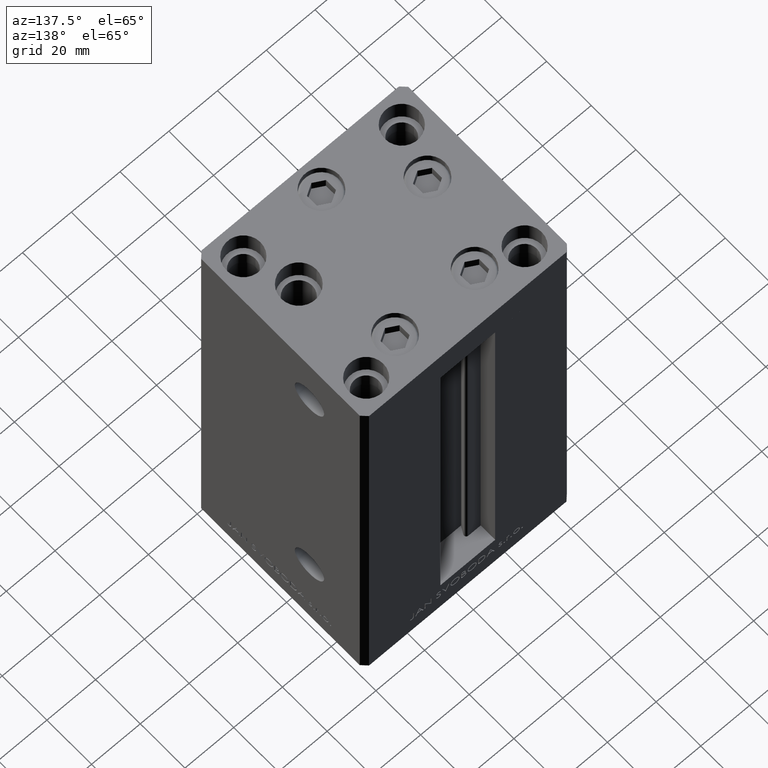
[diagram: clean part render]
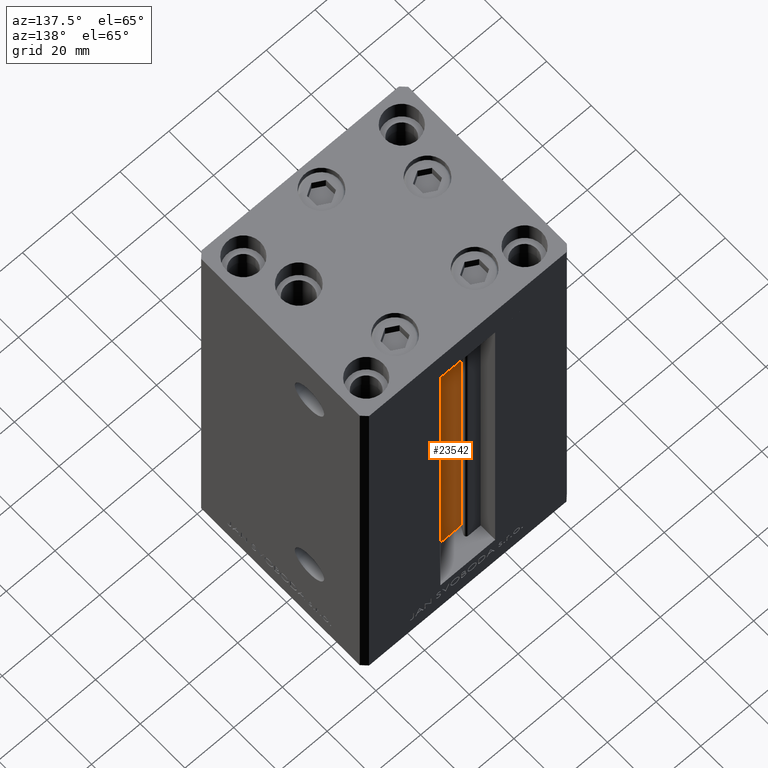
[diagram: same view with one face highlighted and labeled with its STEP entity id]
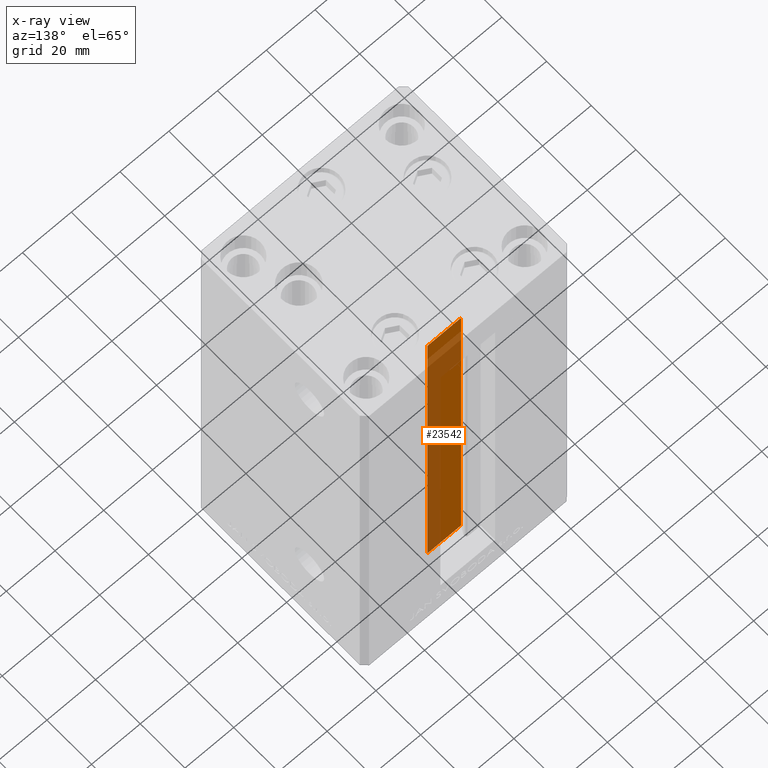
[diagram: x-ray of the same camera — body ghosted, the highlighted face saturated]
A machine part, auxiliary view. The second image highlights one B-rep face of the part: STEP entity #23542.
The next image is the same camera in x-ray: the body ghosted, the highlighted face saturated — about 45% of this face is hidden behind the body in this view.
In plain terms, the highlighted planar face has unit normal (0, -1, 0).
Its self-contained STEP definition (entity closure, byte-faithful):
#1170 = VERTEX_POINT ( 'NONE', #11603 ) ;
#2106 = VERTEX_POINT ( 'NONE', #38323 ) ;
#2194 = CARTESIAN_POINT ( 'NONE',  ( -6.876153656360465938, 26.99999999999986855, 148.5000000000000000 ) ) ;
#3292 = VERTEX_POINT ( 'NONE', #2194 ) ;
#4184 = VECTOR ( 'NONE', #23175, 1000.000000000000000 ) ;
#5510 = EDGE_CURVE ( 'NONE', #1170, #40944, #18996, .T. ) ;
#7609 = ORIENTED_EDGE ( 'NONE', *, *, #16203, .F. ) ;
#8912 = ORIENTED_EDGE ( 'NONE', *, *, #12816, .T. ) ;
#11603 = CARTESIAN_POINT ( 'NONE',  ( 6.876153656360465938, 26.99999999999986855, 0.000000000000000000 ) ) ;
#12816 = EDGE_CURVE ( 'NONE', #2106, #3292, #26680, .T. ) ;
#14702 = EDGE_CURVE ( 'NONE', #40944, #3292, #19872, .T. ) ;
#15450 = VECTOR ( 'NONE', #29778, 1000.000000000000000 ) ;
#16203 = EDGE_CURVE ( 'NONE', #2106, #1170, #37234, .T. ) ;
#17208 = CARTESIAN_POINT ( 'NONE',  ( 6.876153656360465938, 26.99999999999986855, 148.5000000000000000 ) ) ;
#18996 = LINE ( 'NONE', #22489, #24637 ) ;
#19872 = LINE ( 'NONE', #30616, #32904 ) ;
#20590 = AXIS2_PLACEMENT_3D ( 'NONE', #40422, #32959, #32705 ) ;
#22489 = CARTESIAN_POINT ( 'NONE',  ( 6.876153656360465938, 26.99999999999986855, 0.000000000000000000 ) ) ;
#23175 = DIRECTION ( 'NONE',  ( -0.000000000000000000, -0.000000000000000000, 1.000000000000000000 ) ) ;
#23542 = ADVANCED_FACE ( 'NONE', ( #48387 ), #44899, .F. ) ;
#24637 = VECTOR ( 'NONE', #45388, 1000.000000000000000 ) ;
#25564 = ORIENTED_EDGE ( 'NONE', *, *, #14702, .F. ) ;
#26680 = LINE ( 'NONE', #45105, #4184 ) ;
#27367 = DIRECTION ( 'NONE',  ( -1.000000000000000000, 0.000000000000000000, 0.000000000000000000 ) ) ;
#29778 = DIRECTION ( 'NONE',  ( 1.000000000000000000, -0.000000000000000000, -0.000000000000000000 ) ) ;
#30616 = CARTESIAN_POINT ( 'NONE',  ( 0.000000000000000000, 26.99999999999986855, 148.5000000000000000 ) ) ;
#32705 = DIRECTION ( 'NONE',  ( 0.000000000000000000, 0.000000000000000000, -1.000000000000000000 ) ) ;
#32904 = VECTOR ( 'NONE', #27367, 1000.000000000000000 ) ;
#32959 = DIRECTION ( 'NONE',  ( 0.000000000000000000, -1.000000000000000000, -0.000000000000000000 ) ) ;
#33759 = CARTESIAN_POINT ( 'NONE',  ( 6.876153656360465938, 26.99999999999986855, 0.000000000000000000 ) ) ;
#37234 = LINE ( 'NONE', #33759, #15450 ) ;
#37767 = ORIENTED_EDGE ( 'NONE', *, *, #5510, .F. ) ;
#38323 = CARTESIAN_POINT ( 'NONE',  ( -6.876153656360465938, 26.99999999999986855, 0.000000000000000000 ) ) ;
#40422 = CARTESIAN_POINT ( 'NONE',  ( 6.876153656360465938, 26.99999999999986855, 0.000000000000000000 ) ) ;
#40944 = VERTEX_POINT ( 'NONE', #17208 ) ;
#44899 = PLANE ( 'NONE',  #20590 ) ;
#45105 = CARTESIAN_POINT ( 'NONE',  ( -6.876153656360465938, 26.99999999999986855, 0.000000000000000000 ) ) ;
#45388 = DIRECTION ( 'NONE',  ( -0.000000000000000000, -0.000000000000000000, 1.000000000000000000 ) ) ;
#48387 = FACE_OUTER_BOUND ( 'NONE', #48971, .T. ) ;
#48971 = EDGE_LOOP ( 'NONE', ( #37767, #7609, #8912, #25564 ) ) ;